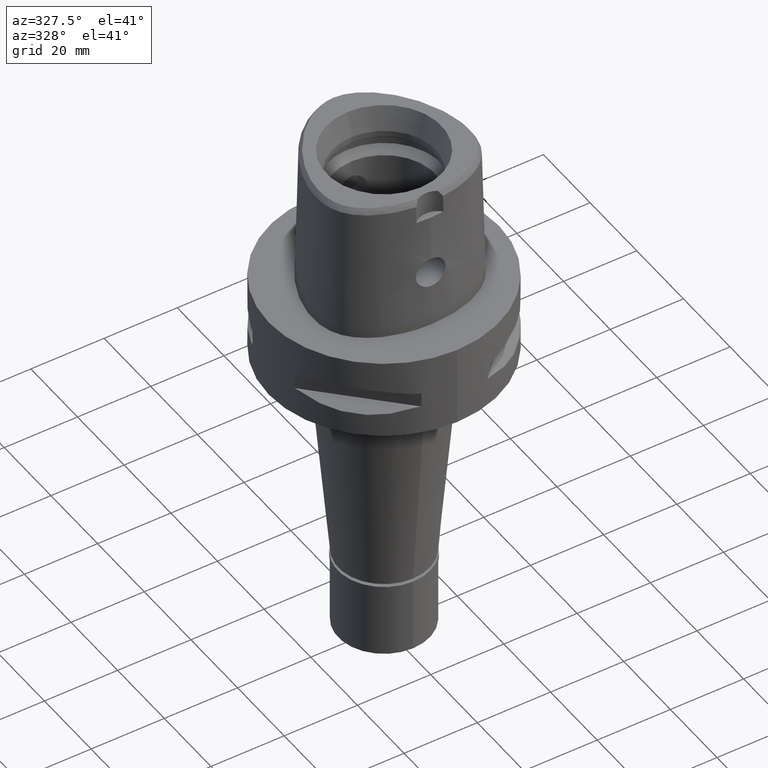
[diagram: clean part render]
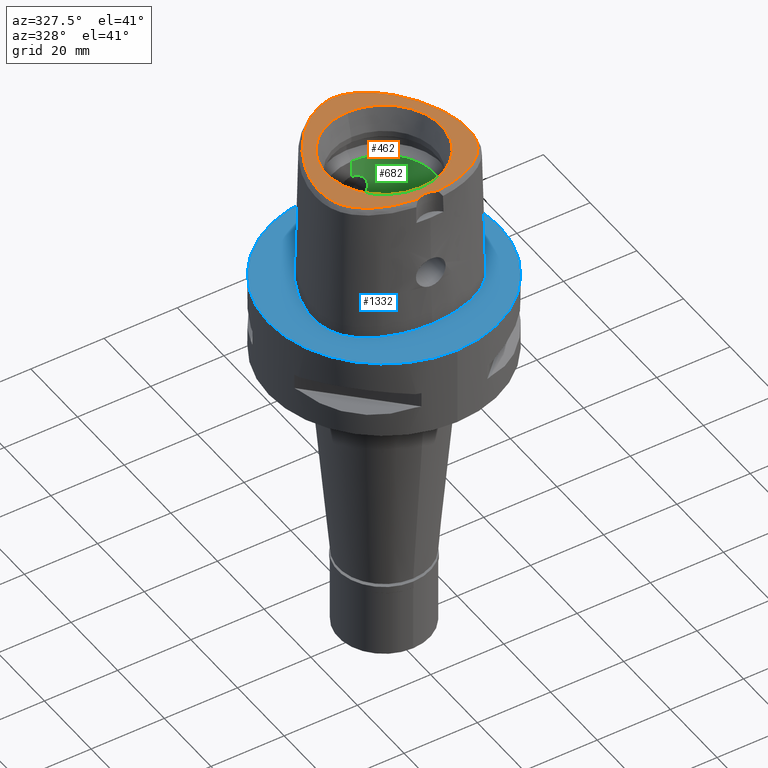
[diagram: same view with three faces highlighted in distinct colors, each labeled with its STEP entity id]
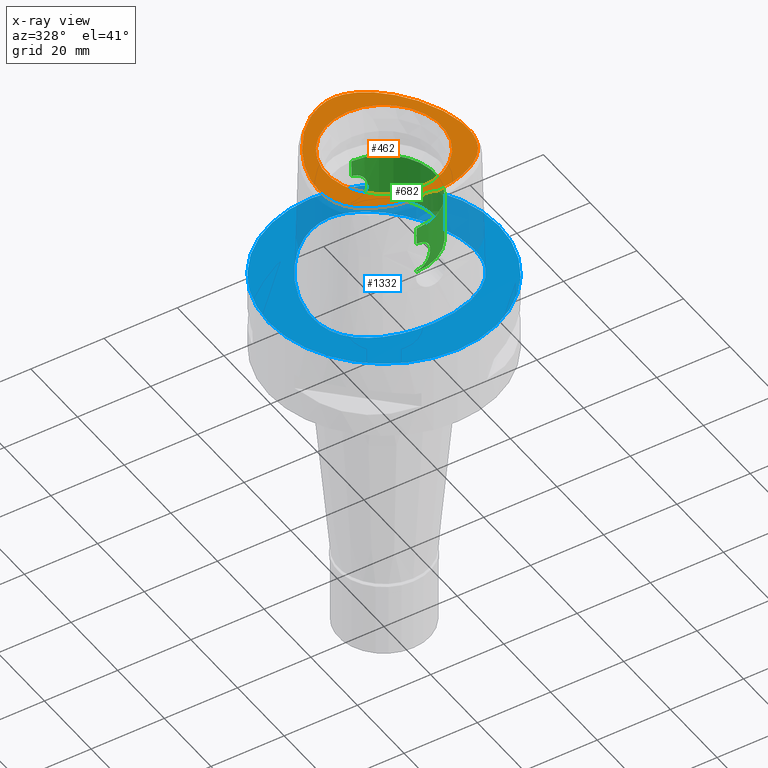
[diagram: x-ray of the same camera — body ghosted, the three highlighted faces saturated]
A machine part, auxiliary view with three faces highlighted in distinct colors.
The next image is the same camera in x-ray (body ghosted, the three faces saturated) — at least one of them is partly hidden behind the body in this view.
Their STEP definitions:

[orange] entity #462 — the highlighted planar face has unit normal (0, 0, 1).
#46 = CARTESIAN_POINT ( 'NONE',  ( -19.78262210840552981, -8.543146992551962526, 38.00000000000281375 ) ) ;
#132 = DIRECTION ( 'NONE',  ( 0.0000000000000000000, 1.000000000000000000, 0.0000000000000000000 ) ) ;
#147 = AXIS2_PLACEMENT_3D ( 'NONE', #3137, #1197, #2326 ) ;
#174 = CARTESIAN_POINT ( 'NONE',  ( -0.6498990081533727592, 21.67378274707922259, 37.99999999999635492 ) ) ;
#180 = EDGE_CURVE ( 'NONE', #1405, #1627, #1930, .T. ) ;
#253 = CARTESIAN_POINT ( 'NONE',  ( 19.26272899268332495, 2.870227893749907278, 37.99999999999666045 ) ) ;
#275 = CARTESIAN_POINT ( 'NONE',  ( 19.98468477322884951, -7.807876343103253625, 37.99999999999519673 ) ) ;
#304 = AXIS2_PLACEMENT_3D ( 'NONE', #1051, #4631, #2601 ) ;
#329 = CARTESIAN_POINT ( 'NONE',  ( -19.54919922641557051, -9.228169790567918085, 38.00000000000756728 ) ) ;
#345 = CARTESIAN_POINT ( 'NONE',  ( 0.0000000000000000000, 15.71487483155999776, 38.00000000000000000 ) ) ;
#350 = CARTESIAN_POINT ( 'NONE',  ( -18.31748213707032846, -11.58791794387644636, 37.99999999999504041 ) ) ;
#378 = CARTESIAN_POINT ( 'NONE',  ( -15.00295592773540143, -14.82617991125659529, 37.99999999999928235 ) ) ;
#427 = CARTESIAN_POINT ( 'NONE',  ( -3.522896839654338308, -18.70811514173411538, 37.99999999999774047 ) ) ;
#462 = ADVANCED_FACE ( 'NONE', ( #4943, #1130 ), #1105, .T. ) ;
#471 = ORIENTED_EDGE ( 'NONE', *, *, #2487, .F. ) ;
#496 = EDGE_LOOP ( 'NONE', ( #2342, #471, #1684 ) ) ;
#504 = CARTESIAN_POINT ( 'NONE',  ( -1.323674540694193213, 21.61098849315887449, 38.00000000000073896 ) ) ;
#588 = CARTESIAN_POINT ( 'NONE',  ( -2.682279906006999948, -18.78035848609999903, 38.00000000000000000 ) ) ;
#609 = CARTESIAN_POINT ( 'NONE',  ( 0.2185816947241264185, 21.68728795389688813, 38.00000000000073186 ) ) ;
#663 = CARTESIAN_POINT ( 'NONE',  ( 20.15982952132096173, -1.007721426051856994, 38.00000000000159162 ) ) ;
#688 = CARTESIAN_POINT ( 'NONE',  ( 20.38292172607745201, -3.276278498261031569, 37.99999999999698730 ) ) ;
#714 = CARTESIAN_POINT ( 'NONE',  ( 10.48999540691348287, 16.86597469869753496, 37.99999999999941735 ) ) ;
#767 = CARTESIAN_POINT ( 'NONE',  ( -14.21001600787493935, -15.34519100085890031, 38.00000000000296296 ) ) ;
#796 = CARTESIAN_POINT ( 'NONE',  ( -19.28591707037048053, -9.869682450886278602, 38.00000000000115818 ) ) ;
#820 = CARTESIAN_POINT ( 'NONE',  ( -4.706994425064091381, -18.56721852572143661, 38.00000000001156053 ) ) ;
#865 = CARTESIAN_POINT ( 'NONE',  ( -4.254559144977106300, 20.86660163696978643, 38.00000000000041922 ) ) ;
#996 = CARTESIAN_POINT ( 'NONE',  ( 16.36283630828387459, -13.76236604535341890, 37.99999999999447908 ) ) ;
#1018 = CARTESIAN_POINT ( 'NONE',  ( 5.894487344450284105, 20.13186406532522454, 37.99999999999013767 ) ) ;
#1045 = CARTESIAN_POINT ( 'NONE',  ( 11.46587147800505235, 15.92717600803452882, 37.99999999999688072 ) ) ;
#1051 = CARTESIAN_POINT ( 'NONE',  ( 0.0000000000000000000, 0.0000000000000000000, 38.00000000000000000 ) ) ;
#1075 = CARTESIAN_POINT ( 'NONE',  ( 12.44125753246675359, 14.89118158853383989, 37.99999999999811706 ) ) ;
#1100 = CARTESIAN_POINT ( 'NONE',  ( 17.91165267839327768, -12.13575389397936100, 38.00000000000002132 ) ) ;
#1105 = PLANE ( 'NONE',  #304 ) ;
#1130 = FACE_BOUND ( 'NONE', #4681, .T. ) ;
#1131 = CARTESIAN_POINT ( 'NONE',  ( -8.930096025509984159, -17.65000298921531297, 38.00000000000046185 ) ) ;
#1134 = CARTESIAN_POINT ( 'NONE',  ( 2.682287482605000051, -18.78036330228999873, 38.00000000000000000 ) ) ;
#1159 = CARTESIAN_POINT ( 'NONE',  ( -18.99520880204162765, -10.46968343926018186, 38.00000000000366640 ) ) ;
#1179 = CARTESIAN_POINT ( 'NONE',  ( -20.16012968311603260, -1.009698174524550129, 38.00000000000493827 ) ) ;
#1197 = DIRECTION ( 'NONE',  ( 0.0000000000000000000, 0.0000000000000000000, 1.000000000000000000 ) ) ;
#1204 = CARTESIAN_POINT ( 'NONE',  ( -20.15090095364973166, -7.024227649787400551, 38.00000000000152056 ) ) ;
#1229 = CARTESIAN_POINT ( 'NONE',  ( -17.45119705493798179, -12.68365517585207769, 38.00000000000652989 ) ) ;
#1306 = CARTESIAN_POINT ( 'NONE',  ( -5.893543501600515100, 20.13235399351791699, 38.00000000000964917 ) ) ;
#1328 = CARTESIAN_POINT ( 'NONE',  ( -5.058220461388441613, 20.53445508814107257, 38.00000000000193268 ) ) ;
#1378 = CARTESIAN_POINT ( 'NONE',  ( 10.17751632998204236, -17.24426134458966686, 37.99999999999598543 ) ) ;
#1401 = CARTESIAN_POINT ( 'NONE',  ( 19.78323211893065192, -8.541156231035676782, 37.99999999999571543 ) ) ;
#1405 = VERTEX_POINT ( 'NONE', #1134 ) ;
#1429 = CARTESIAN_POINT ( 'NONE',  ( 15.72078707640399386, -14.29615620309059310, 37.99999999999869971 ) ) ;
#1458 = CARTESIAN_POINT ( 'NONE',  ( 13.40430406168277067, 13.76274261013427136, 37.99999999999808153 ) ) ;
#1486 = CARTESIAN_POINT ( 'NONE',  ( 1.325020189552918115, 21.61081414408923962, 37.99999999999540989 ) ) ;
#1513 = CARTESIAN_POINT ( 'NONE',  ( -19.64434054692667431, 1.520253387635122300, 37.99999999999868550 ) ) ;
#1526 = B_SPLINE_CURVE_WITH_KNOTS ( 'NONE', 3,
 ( #3473, #1937, #427, #820, #2703, #3527, #1131, #1607, #3888, #4292, #5017, #767, #378, #4684, #2316, #2372, #1229, #3842, #350, #4343, #1159, #796, #329, #46, #3504, #1204, #1560, #2729, #4740, #3117, #1888, #1179, #3940, #1513, #1582, #3143, #1989, #3167, #3549, #2779, #2269, #3062, #4633, #2678, #4249, #2826, #2447, #1707, #4814, #4368, #1306, #1328, #865, #4787, #4860, #4013, #504, #174, #2855, #2113 ),
 .UNSPECIFIED., .F., .F.,
 ( 4, 1, 1, 1, 1, 1, 1, 1, 1, 1, 1, 1, 1, 1, 1, 1, 1, 1, 1, 1, 1, 1, 1, 1, 1, 1, 1, 1, 1, 1, 1, 1, 1, 1, 1, 1, 1, 1, 1, 1, 1, 1, 1, 1, 1, 1, 1, 1, 1, 1, 1, 1, 1, 1, 1, 1, 1, 4 ),
 ( 0.0000000000000000000, 0.005420919554200098744, 0.02318126027639999531, 0.04094160099879995407, 0.05870194172099996166, 0.07646228244330000035, 0.09422262316550000794, 0.1119829638877999356, 0.1297433046099999432, 0.1475036453321999508, 0.1652639860544999895, 0.1830243267768000281, 0.2007846674991000668, 0.2185450082212999634, 0.2363053489436000021, 0.2540656896658000097, 0.2718260303881000484, 0.2895863711103000560, 0.3073467118325999836, 0.3251070525547999912, 0.3428673932771000299, 0.3606277339994000686, 0.3783880747216000762, 0.3961484154438998928, 0.4139087561661000114, 0.4316690968884000501, 0.4494294376106000577, 0.4671897783328999854, 0.4849501190552000240, 0.5027104597774000316, 0.5204708004996999593, 0.5382311412219000779, 0.5559914819442000056, 0.5737518226664000132, 0.5915121633886999408, 0.6092725041108999484, 0.6270328448331999871, 0.6447931855555000258, 0.6625535262777000334, 0.6803138669999999610, 0.6980742077221999686, 0.7158345484445000073, 0.7335948891667000149, 0.7513552298890000536, 0.7691155706112000612, 0.7868759113336000199, 0.8046362520558000275, 0.8223965927780999552, 0.8401569335002999628, 0.8579172742224999704, 0.8756776149448000091, 0.8934379556670000166, 0.9111982963893099363, 0.9289586371115700070, 0.9467189778338299666, 0.9644793185560800453, 0.9822396592783400049, 1.000000000000000000 ),
 .UNSPECIFIED. ) ;
#1560 = CARTESIAN_POINT ( 'NONE',  ( -20.27898581532319966, -6.181921586189865536, 37.99999999999933920 ) ) ;
#1582 = CARTESIAN_POINT ( 'NONE',  ( -19.26324493738749055, 2.868570891456666327, 38.00000000000490274 ) ) ;
#1607 = CARTESIAN_POINT ( 'NONE',  ( -10.17136073855609624, -17.24644253469755384, 38.00000000000308376 ) ) ;
#1627 = VERTEX_POINT ( 'NONE', #588 ) ;
#1667 = DIRECTION ( 'NONE',  ( 0.0000000000000000000, 0.0000000000000000000, 1.000000000000000000 ) ) ;
#1684 = ORIENTED_EDGE ( 'NONE', *, *, #180, .F. ) ;
#1707 = CARTESIAN_POINT ( 'NONE',  ( -8.578220530112627529, 18.44656747109207728, 38.00000000000359535 ) ) ;
#1752 = CARTESIAN_POINT ( 'NONE',  ( 8.578848111817377387, 18.44609846599081138, 37.99999999999710809 ) ) ;
#1779 = CARTESIAN_POINT ( 'NONE',  ( 8.936919536467087255, -17.64796721715518402, 37.99999999999105427 ) ) ;
#1806 = CARTESIAN_POINT ( 'NONE',  ( 15.24661770199737632, 11.25762885478421538, 37.99999999999798206 ) ) ;
#1809 = VERTEX_POINT ( 'NONE', #345 ) ;
#1832 = CARTESIAN_POINT ( 'NONE',  ( 18.67722910597911223, -11.03372143227727342, 37.99999999999814548 ) ) ;
#1834 = DIRECTION ( 'NONE',  ( 0.0000000000000000000, -1.000000000000000000, 0.0000000000000000000 ) ) ;
#1859 = CARTESIAN_POINT ( 'NONE',  ( 19.28677546797063513, -9.867757137506577791, 37.99999999999479883 ) ) ;
#1888 = CARTESIAN_POINT ( 'NONE',  ( -20.30498420086360056, -2.177378896258066021, 38.00000000000732570 ) ) ;
#1930 = CIRCLE ( 'NONE', #3074, 5.000000000000000888 ) ;
#1937 = CARTESIAN_POINT ( 'NONE',  ( -2.841965291530468285, -18.76757795571840504, 37.99999999999843681 ) ) ;
#1956 = B_SPLINE_CURVE_WITH_KNOTS ( 'NONE', 3,
 ( #3837, #609, #3781, #1486, #3753, #3011, #4579, #3345, #4549, #1018, #2953, #2568, #1752, #3807, #714, #1045, #1075, #1458, #4193, #1806, #3034, #4602, #4494, #2596, #4137, #253, #4518, #4170, #663, #2619, #688, #3369, #2262, #4217, #2214, #275, #1401, #3318, #1859, #2238, #1832, #2159, #1100, #4937, #3394, #996, #1429, #2981, #4968, #3424, #4995, #4885, #1378, #1779, #2931, #4911, #2645, #3724, #2543, #4110 ),
 .UNSPECIFIED., .F., .F.,
 ( 4, 1, 1, 1, 1, 1, 1, 1, 1, 1, 1, 1, 1, 1, 1, 1, 1, 1, 1, 1, 1, 1, 1, 1, 1, 1, 1, 1, 1, 1, 1, 1, 1, 1, 1, 1, 1, 1, 1, 1, 1, 1, 1, 1, 1, 1, 1, 1, 1, 1, 1, 1, 1, 1, 1, 1, 1, 4 ),
 ( 0.0000000000000000000, 0.01775854187129999318, 0.03551708374169992855, 0.05327562561200005486, 0.07103416748239999023, 0.08879270935270000553, 0.1065512512231000519, 0.1243097930933999562, 0.1420683349638000026, 0.1598268768341000179, 0.1775854187044000332, 0.1953439605747999686, 0.2131025024450999839, 0.2308610443155000302, 0.2486195861857999345, 0.2663781280563000120, 0.2841366699266000273, 0.3018952117970000737, 0.3196537536672999780, 0.3374122955377000244, 0.3551708374080000397, 0.3729293792782999439, 0.3906879211486999903, 0.4084464630190000056, 0.4262050048894000520, 0.4439635467596999563, 0.4617220886301000027, 0.4794806305004000180, 0.4972391723707999533, 0.5149977142410999686, 0.5327562561113999839, 0.5505147979818000303, 0.5682733398521000456, 0.5860318817224999810, 0.6037904235927999963, 0.6215489654632000427, 0.6393075073334999470, 0.6570660492038999934, 0.6748245910742000087, 0.6925831329445000240, 0.7103416748149000703, 0.7281002166851999746, 0.7458587585556000210, 0.7636173004259000363, 0.7813758422962999717, 0.7991343841665999870, 0.8168929260370000334, 0.8346514679073000487, 0.8524100097776999840, 0.8701685516479999993, 0.8879270935183000146, 0.9056856353886799660, 0.9234441772589799813, 0.9412027191293600437, 0.9589612609997000270, 0.9767198028700500023, 0.9944783447403919840, 1.000000000000000000 ),
 .UNSPECIFIED. ) ;
#1988 = EDGE_CURVE ( 'NONE', #1809, #2608, #2350, .T. ) ;
#1989 = CARTESIAN_POINT ( 'NONE',  ( -18.24302769442031291, 5.671232572957693563, 38.00000000000365930 ) ) ;
#2113 = CARTESIAN_POINT ( 'NONE',  ( -3.470663397229000302E-11, 21.68728795390000030, 38.00000000000000000 ) ) ;
#2159 = CARTESIAN_POINT ( 'NONE',  ( 18.31883910943081517, -11.58595831187914804, 37.99999999999335643 ) ) ;
#2214 = CARTESIAN_POINT ( 'NONE',  ( 20.15127154947508359, -7.022178451341208216, 37.99999999999802469 ) ) ;
#2238 = CARTESIAN_POINT ( 'NONE',  ( 18.99619228226755396, -10.46780014453288743, 37.99999999999511857 ) ) ;
#2262 = CARTESIAN_POINT ( 'NONE',  ( 20.36412151360649858, -5.276385427453883281, 37.99999999999705835 ) ) ;
#2269 = CARTESIAN_POINT ( 'NONE',  ( -15.24692477332314233, 11.25717358965731485, 38.00000000000438405 ) ) ;
#2316 = CARTESIAN_POINT ( 'NONE',  ( -16.36032397153557838, -13.76458520345077119, 38.00000000000245848 ) ) ;
#2326 = DIRECTION ( 'NONE',  ( 0.0000000000000000000, 1.000000000000000000, 0.0000000000000000000 ) ) ;
#2342 = ORIENTED_EDGE ( 'NONE', *, *, #4027, .F. ) ;
#2350 = CIRCLE ( 'NONE', #147, 15.71487483155999776 ) ;
#2372 = CARTESIAN_POINT ( 'NONE',  ( -16.93638123744996449, -13.22593246128253419, 37.99999999999452882 ) ) ;
#2447 = CARTESIAN_POINT ( 'NONE',  ( -9.524337278000626128, 17.70558492631665004, 38.00000000000424905 ) ) ;
#2487 = EDGE_CURVE ( 'NONE', #1627, #4923, #1526, .T. ) ;
#2543 = CARTESIAN_POINT ( 'NONE',  ( 2.845098933833402732, -18.76733062685941533, 37.99999999999683808 ) ) ;
#2568 = CARTESIAN_POINT ( 'NONE',  ( 7.655962789343603525, 19.09402979099492015, 37.99999999999594991 ) ) ;
#2596 = CARTESIAN_POINT ( 'NONE',  ( 18.24247239569132972, 5.672548708072024937, 37.99999999999890576 ) ) ;
#2597 = CARTESIAN_POINT ( 'NONE',  ( -3.470663397229000302E-11, 21.68728795390000030, 38.00000000000000000 ) ) ;
#2601 = DIRECTION ( 'NONE',  ( 1.000000000000000000, 0.0000000000000000000, 0.0000000000000000000 ) ) ;
#2608 = VERTEX_POINT ( 'NONE', #4701 ) ;
#2619 = CARTESIAN_POINT ( 'NONE',  ( 20.30478359882114248, -2.175347700950460261, 37.99999999999803890 ) ) ;
#2645 = CARTESIAN_POINT ( 'NONE',  ( 4.715576077242102038, -18.56597918135167902, 37.99999999998752287 ) ) ;
#2673 = ORIENTED_EDGE ( 'NONE', *, *, #4926, .F. ) ;
#2678 = CARTESIAN_POINT ( 'NONE',  ( -12.44116897271252498, 14.89128547409181280, 38.00000000000535039 ) ) ;
#2703 = CARTESIAN_POINT ( 'NONE',  ( -6.188376196366496274, -18.31830638231022590, 38.00000000000454747 ) ) ;
#2729 = CARTESIAN_POINT ( 'NONE',  ( -20.36398648679262280, -5.278470727085379899, 37.99999999999829470 ) ) ;
#2779 = CARTESIAN_POINT ( 'NONE',  ( -16.09805956313175912, 9.908742513516047623, 38.00000000000571987 ) ) ;
#2826 = CARTESIAN_POINT ( 'NONE',  ( -10.48962422759530533, 16.86631853279389759, 38.00000000000986944 ) ) ;
#2855 = CARTESIAN_POINT ( 'NONE',  ( -0.2181979014508255710, 21.68728795389070996, 37.99999999999972999 ) ) ;
#2931 = CARTESIAN_POINT ( 'NONE',  ( 7.606839420237573535, -18.00827588386176004, 37.99999999999720046 ) ) ;
#2953 = CARTESIAN_POINT ( 'NONE',  ( 6.760281394351507878, 19.65404668910018771, 37.99999999999480593 ) ) ;
#2981 = CARTESIAN_POINT ( 'NONE',  ( 15.00628712263345221, -14.82385870794839988, 37.99999999999199929 ) ) ;
#3011 = CARTESIAN_POINT ( 'NONE',  ( 2.736932690727418294, 21.34527940056959139, 37.99999999999574385 ) ) ;
#3034 = CARTESIAN_POINT ( 'NONE',  ( 16.09765529146816831, 9.909410920132508238, 37.99999999999626965 ) ) ;
#3062 = CARTESIAN_POINT ( 'NONE',  ( -14.34402387965822001, 12.54761970512852187, 38.00000000000321165 ) ) ;
#3074 = AXIS2_PLACEMENT_3D ( 'NONE', #4772, #1667, #132 ) ;
#3117 = CARTESIAN_POINT ( 'NONE',  ( -20.38301517462559076, -3.278344853327928909, 38.00000000000537170 ) ) ;
#3137 = CARTESIAN_POINT ( 'NONE',  ( 0.0000000000000000000, 0.0000000000000000000, 38.00000000000000000 ) ) ;
#3143 = CARTESIAN_POINT ( 'NONE',  ( -18.79649882724998022, 4.256255933890688681, 37.99999999999986500 ) ) ;
#3167 = CARTESIAN_POINT ( 'NONE',  ( -17.60426951086602543, 7.098774535280977460, 37.99999999999985789 ) ) ;
#3318 = CARTESIAN_POINT ( 'NONE',  ( 19.54993126782149204, -9.226212439886005257, 37.99999999999601386 ) ) ;
#3345 = CARTESIAN_POINT ( 'NONE',  ( 4.255661039972457260, 20.86618068830161477, 37.99999999999078426 ) ) ;
#3369 = CARTESIAN_POINT ( 'NONE',  ( 20.40062138794564817, -4.309334958867639287, 38.00000000000136424 ) ) ;
#3394 = CARTESIAN_POINT ( 'NONE',  ( 16.93855157778130760, -13.22377441788924024, 37.99999999999106137 ) ) ;
#3424 = CARTESIAN_POINT ( 'NONE',  ( 13.33890749495513006, -15.84912955619422981, 37.99999999999434408 ) ) ;
#3473 = CARTESIAN_POINT ( 'NONE',  ( -2.682279906006999948, -18.78035848609999903, 38.00000000000000000 ) ) ;
#3502 = CIRCLE ( 'NONE', #4158, 15.71487483155999776 ) ;
#3504 = CARTESIAN_POINT ( 'NONE',  ( -19.98419490691661338, -7.809898894995214391, 38.00000000000164846 ) ) ;
#3527 = CARTESIAN_POINT ( 'NONE',  ( -7.599370508970309857, -18.01010694911651910, 38.00000000000925837 ) ) ;
#3549 = CARTESIAN_POINT ( 'NONE',  ( -16.88647904405405598, 8.517821442301785950, 38.00000000000395772 ) ) ;
#3724 = CARTESIAN_POINT ( 'NONE',  ( 3.529311563348512593, -18.70747079910031019, 37.99999999999567990 ) ) ;
#3725 = DIRECTION ( 'NONE',  ( 0.0000000000000000000, 0.0000000000000000000, 1.000000000000000000 ) ) ;
#3753 = CARTESIAN_POINT ( 'NONE',  ( 2.018320379028101463, 21.50256508436266856, 37.99999999999842260 ) ) ;
#3781 = CARTESIAN_POINT ( 'NONE',  ( 0.6513209347955878359, 21.67370899611608337, 38.00000000000238032 ) ) ;
#3807 = CARTESIAN_POINT ( 'NONE',  ( 9.524842839488691482, 17.70516372195016430, 37.99999999999702993 ) ) ;
#3837 = CARTESIAN_POINT ( 'NONE',  ( -3.470663397229000302E-11, 21.68728795390000030, 38.00000000000000000 ) ) ;
#3842 = CARTESIAN_POINT ( 'NONE',  ( -17.91005512243933495, -12.13778127739592350, 38.00000000000576250 ) ) ;
#3888 = CARTESIAN_POINT ( 'NONE',  ( -11.31790883121222002, -16.80796958613126790, 38.00000000000212452 ) ) ;
#3940 = CARTESIAN_POINT ( 'NONE',  ( -19.94188961899090273, 0.2242544969873270511, 38.00000000000666489 ) ) ;
#4013 = CARTESIAN_POINT ( 'NONE',  ( -2.017025177696609717, 21.50280829368043811, 37.99999999999572964 ) ) ;
#4027 = EDGE_CURVE ( 'NONE', #4923, #1405, #1956, .T. ) ;
#4090 = CARTESIAN_POINT ( 'NONE',  ( 0.0000000000000000000, 0.0000000000000000000, 38.00000000000000000 ) ) ;
#4110 = CARTESIAN_POINT ( 'NONE',  ( 2.682287482605000051, -18.78036330228999873, 38.00000000000000000 ) ) ;
#4137 = CARTESIAN_POINT ( 'NONE',  ( 18.79595068775972777, 4.257753965102246241, 38.00000000000069633 ) ) ;
#4158 = AXIS2_PLACEMENT_3D ( 'NONE', #4090, #3725, #1834 ) ;
#4170 = CARTESIAN_POINT ( 'NONE',  ( 19.94150023628145618, 0.2261566111946073931, 37.99999999999950262 ) ) ;
#4193 = CARTESIAN_POINT ( 'NONE',  ( 14.34383722811384843, 12.54786717290293474, 37.99999999999545253 ) ) ;
#4217 = CARTESIAN_POINT ( 'NONE',  ( 20.27923816685535385, -6.179850483267900429, 38.00000000000305533 ) ) ;
#4249 = CARTESIAN_POINT ( 'NONE',  ( -11.46564124494734926, 15.92741340513242143, 37.99999999999715072 ) ) ;
#4292 = CARTESIAN_POINT ( 'NONE',  ( -12.37132652997737914, -16.34104299087987400, 37.99999999999735678 ) ) ;
#4343 = CARTESIAN_POINT ( 'NONE',  ( -18.67608643721240114, -11.03561202290660859, 38.00000000000439115 ) ) ;
#4368 = CARTESIAN_POINT ( 'NONE',  ( -6.759433772716266553, 19.65454812513081961, 37.99999999999882050 ) ) ;
#4447 = ORIENTED_EDGE ( 'NONE', *, *, #1988, .F. ) ;
#4494 = CARTESIAN_POINT ( 'NONE',  ( 17.60373714028314751, 7.099883643193211746, 37.99999999999481304 ) ) ;
#4518 = CARTESIAN_POINT ( 'NONE',  ( 19.64387775268522418, 1.522048414457770837, 37.99999999999263167 ) ) ;
#4549 = CARTESIAN_POINT ( 'NONE',  ( 5.059249257021276591, 20.53399274679161479, 37.99999999999691624 ) ) ;
#4579 = CARTESIAN_POINT ( 'NONE',  ( 3.482188079160266625, 21.13472718027447073, 37.99999999999266720 ) ) ;
#4602 = CARTESIAN_POINT ( 'NONE',  ( 16.88599964843147205, 8.518708218770175478, 37.99999999999621991 ) ) ;
#4631 = DIRECTION ( 'NONE',  ( 0.0000000000000000000, 0.0000000000000000000, 1.000000000000000000 ) ) ;
#4633 = CARTESIAN_POINT ( 'NONE',  ( -13.40435640711669052, 13.76268382997176865, 37.99999999999967315 ) ) ;
#4681 = EDGE_LOOP ( 'NONE', ( #2673, #4447 ) ) ;
#4684 = CARTESIAN_POINT ( 'NONE',  ( -15.71788912669418181, -14.29843101565814401, 37.99999999999955946 ) ) ;
#4701 = CARTESIAN_POINT ( 'NONE',  ( 0.0000000000000000000, -15.71487483155999776, 38.00000000000000000 ) ) ;
#4740 = CARTESIAN_POINT ( 'NONE',  ( -20.40060226222959727, -4.311417605381600460, 38.00000000000920863 ) ) ;
#4772 = CARTESIAN_POINT ( 'NONE',  ( 0.0000000000000000000, -23.00000000000000000, 38.00000000000000000 ) ) ;
#4787 = CARTESIAN_POINT ( 'NONE',  ( -3.481017203588342657, 21.13509756881651214, 38.00000000000250111 ) ) ;
#4814 = CARTESIAN_POINT ( 'NONE',  ( -7.655222869371202776, 19.09452359226191120, 37.99999999999905498 ) ) ;
#4860 = CARTESIAN_POINT ( 'NONE',  ( -2.735698246182536320, 21.34559102902381866, 38.00000000000737543 ) ) ;
#4885 = CARTESIAN_POINT ( 'NONE',  ( 11.32341394162545711, -16.80569392800240180, 37.99999999999452882 ) ) ;
#4911 = CARTESIAN_POINT ( 'NONE',  ( 6.196495988003987598, -18.31673538865303996, 37.99999999999493383 ) ) ;
#4923 = VERTEX_POINT ( 'NONE', #2597 ) ;
#4926 = EDGE_CURVE ( 'NONE', #2608, #1809, #3502, .T. ) ;
#4937 = CARTESIAN_POINT ( 'NONE',  ( 17.45306278053514148, -12.68156296993879373, 37.99999999999755573 ) ) ;
#4943 = FACE_OUTER_BOUND ( 'NONE', #496, .T. ) ;
#4968 = CARTESIAN_POINT ( 'NONE',  ( 14.21382211799205564, -15.34284287400554270, 37.99999999999376143 ) ) ;
#4995 = CARTESIAN_POINT ( 'NONE',  ( 12.37622418509544531, -16.33871033286036933, 37.99999999999196376 ) ) ;
#5017 = CARTESIAN_POINT ( 'NONE',  ( -13.33457781969781486, -15.85148397417110111, 38.00000000000518696 ) ) ;

[blue] entity #1332 — the highlighted planar face has unit normal (0, 0, -1).
#19 = CARTESIAN_POINT ( 'NONE',  ( -5.098437017460036635, 22.52602539107009605, -1.896419848414210296E-08 ) ) ;
#24 = CARTESIAN_POINT ( 'NONE',  ( 7.571159421460366801, 21.31457029046941898, 1.017786698643370277E-06 ) ) ;
#256 = EDGE_LOOP ( 'NONE', ( #2533, #952 ) ) ;
#281 = CARTESIAN_POINT ( 'NONE',  ( 18.56841063287715343, -14.16937986524684767, 1.017786698643370277E-06 ) ) ;
#307 = CARTESIAN_POINT ( 'NONE',  ( 21.55524823561971814, -8.996025383350751525, 1.017786698643370277E-06 ) ) ;
#374 = VERTEX_POINT ( 'NONE', #3373 ) ;
#381 = DIRECTION ( 'NONE',  ( 0.0000000000000000000, -1.000000000000000000, 0.0000000000000000000 ) ) ;
#453 = DIRECTION ( 'NONE',  ( 0.0000000000000000000, 1.000000000000000000, 0.0000000000000000000 ) ) ;
#690 = CARTESIAN_POINT ( 'NONE',  ( -14.67337964443364484, -17.21410156291689475, -1.896419848414210296E-08 ) ) ;
#729 = AXIS2_PLACEMENT_3D ( 'NONE', #1253, #2395, #453 ) ;
#747 = DIRECTION ( 'NONE',  ( 0.0000000000000000000, 0.0000000000000000000, -1.000000000000000000 ) ) ;
#762 = CARTESIAN_POINT ( 'NONE',  ( -2.564517727054335783, 23.29328125046647457, -1.896419848414210296E-08 ) ) ;
#952 = ORIENTED_EDGE ( 'NONE', *, *, #1267, .F. ) ;
#1102 = CARTESIAN_POINT ( 'NONE',  ( -16.95889172623143182, -15.67838867225140120, -1.896419848414210296E-08 ) ) ;
#1207 = FACE_BOUND ( 'NONE', #4007, .T. ) ;
#1253 = CARTESIAN_POINT ( 'NONE',  ( 0.0000000000000000000, 0.0000000000000000000, 0.0000000000000000000 ) ) ;
#1267 = EDGE_CURVE ( 'NONE', #3220, #4011, #4727, .T. ) ;
#1279 = CARTESIAN_POINT ( 'NONE',  ( 0.0000000000000000000, 31.50000000000000000, 0.0000000000000000000 ) ) ;
#1332 = ADVANCED_FACE ( 'NONE', ( #2320, #1207 ), #2761, .F. ) ;
#1826 = B_SPLINE_CURVE_WITH_KNOTS ( 'NONE', 3,
 ( #4974, #4917, #4527, #2573, #4145, #3786, #281, #1839, #3017, #3816, #307, #1865, #3038, #2649, #4223, #4661, #2346, #3917, #24, #1966, #2292, #2758, #4318 ),
 .UNSPECIFIED., .F., .F.,
 ( 4, 1, 1, 1, 1, 1, 1, 1, 1, 1, 1, 1, 1, 1, 1, 1, 1, 1, 1, 1, 4 ),
 ( 0.0000000000000000000, 0.08333333333342000937, 0.1666666666667000196, 0.2083333333333000081, 0.2500000000000000000, 0.2916666666666999919, 0.3125000000000000000, 0.3333333333333000081, 0.3541666666666999919, 0.3750000000000000000, 0.4166666666666000163, 0.4583333333332000326, 0.4999999999998999689, 0.5833333333332000326, 0.6666666666664999852, 0.7499999999998000488, 0.8333333333329999704, 0.8749999999997000177, 0.9166666666664000651, 0.9583333333329999704, 1.000000000000000000 ),
 .UNSPECIFIED. ) ;
#1833 = EDGE_CURVE ( 'NONE', #4746, #374, #2676, .T. ) ;
#1839 = CARTESIAN_POINT ( 'NONE',  ( 19.64947363801921298, -12.82525389127146376, 1.017786698643370277E-06 ) ) ;
#1865 = CARTESIAN_POINT ( 'NONE',  ( 22.05732871792944394, -6.847636715114644446, 1.017786698643370277E-06 ) ) ;
#1905 = CARTESIAN_POINT ( 'NONE',  ( -21.55524826054831422, -8.996025390761106522, -1.896419848414210296E-08 ) ) ;
#1944 = CIRCLE ( 'NONE', #729, 31.50000000000000000 ) ;
#1960 = CARTESIAN_POINT ( 'NONE',  ( -2.113823673092746880, -20.67500000047041908, -1.896419848414210296E-08 ) ) ;
#1966 = CARTESIAN_POINT ( 'NONE',  ( 5.098437007786655428, 22.52602536689999368, 1.017786698643370277E-06 ) ) ;
#2005 = ORIENTED_EDGE ( 'NONE', *, *, #1833, .F. ) ;
#2128 = CARTESIAN_POINT ( 'NONE',  ( 0.0000000000000000000, -31.50000000000000000, 0.0000000000000000000 ) ) ;
#2287 = CARTESIAN_POINT ( 'NONE',  ( -20.74942740924353757, 4.657187500162169869, -1.896419848414210296E-08 ) ) ;
#2292 = CARTESIAN_POINT ( 'NONE',  ( 2.564517721726504274, 23.29328122494289488, 1.017786698643370277E-06 ) ) ;
#2310 = CARTESIAN_POINT ( 'NONE',  ( -22.05732874369456198, -6.847636718817597945, -1.896419848414210296E-08 ) ) ;
#2320 = FACE_OUTER_BOUND ( 'NONE', #256, .T. ) ;
#2340 = CARTESIAN_POINT ( 'NONE',  ( -18.56841065176654126, -14.16937988313790520, -1.896419848414210296E-08 ) ) ;
#2346 = CARTESIAN_POINT ( 'NONE',  ( 14.40795637003050089, 15.64093748349210777, 1.017786698643370277E-06 ) ) ;
#2395 = DIRECTION ( 'NONE',  ( 0.0000000000000000000, 0.0000000000000000000, -1.000000000000000000 ) ) ;
#2427 = EDGE_CURVE ( 'NONE', #374, #4746, #1826, .T. ) ;
#2533 = ORIENTED_EDGE ( 'NONE', *, *, #2565, .F. ) ;
#2565 = EDGE_CURVE ( 'NONE', #4011, #3220, #1944, .T. ) ;
#2573 = CARTESIAN_POINT ( 'NONE',  ( 11.23259755853898767, -18.89324216345025320, 1.017786698643370277E-06 ) ) ;
#2583 = AXIS2_PLACEMENT_3D ( 'NONE', #4322, #3891, #381 ) ;
#2621 = CARTESIAN_POINT ( 'NONE',  ( -19.64947365902704490, -12.82525390652630826, -1.896419848414210296E-08 ) ) ;
#2646 = CARTESIAN_POINT ( 'NONE',  ( -9.636109285332001838E-12, -20.67499999999999716, 6.368979417932999865E-14 ) ) ;
#2649 = CARTESIAN_POINT ( 'NONE',  ( 21.97832645267303775, -0.2810937544515378916, 1.017786698643370277E-06 ) ) ;
#2676 = B_SPLINE_CURVE_WITH_KNOTS ( 'NONE', 3,
 ( #2698, #3035, #762, #19, #3810, #3086, #4603, #4263, #2287, #3058, #4244, #2310, #1905, #4627, #4194, #2621, #2340, #1102, #690, #3884, #3523, #1960, #2646 ),
 .UNSPECIFIED., .F., .F.,
 ( 4, 1, 1, 1, 1, 1, 1, 1, 1, 1, 1, 1, 1, 1, 1, 1, 1, 1, 1, 1, 4 ),
 ( 0.0000000000000000000, 0.04166666666747000092, 0.08333333333408000920, 0.1250000000006999956, 0.1666666666674000152, 0.2500000000006000200, 0.3333333333337999971, 0.4166666666671000052, 0.5000000000002999823, 0.5416666666670000296, 0.5833333333335000148, 0.6250000000001999512, 0.6458333333333999837, 0.6666666666667999674, 0.6875000000001000311, 0.7083333333333999837, 0.7500000000000000000, 0.7916666666667000474, 0.8333333333332000326, 0.9166666666666000163, 1.000000000000000000 ),
 .UNSPECIFIED. ) ;
#2698 = CARTESIAN_POINT ( 'NONE',  ( 5.200812825892999658E-11, 23.47499999999000053, 6.084022174946000468E-14 ) ) ;
#2758 = CARTESIAN_POINT ( 'NONE',  ( 0.8548392405057659849, 23.47499997456056775, 1.017786698643370277E-06 ) ) ;
#2761 = PLANE ( 'NONE',  #2583 ) ;
#3017 = CARTESIAN_POINT ( 'NONE',  ( 20.34961796349410079, -11.74885740912871057, 1.017786698643370277E-06 ) ) ;
#3035 = CARTESIAN_POINT ( 'NONE',  ( -0.8548392423352408898, 23.47500000047394053, -1.896419848414209965E-08 ) ) ;
#3038 = CARTESIAN_POINT ( 'NONE',  ( 22.24453905303044010, -4.100468750149344643, 1.017786698643370277E-06 ) ) ;
#3058 = CARTESIAN_POINT ( 'NONE',  ( -21.97832647833655173, -0.2810937499171287102, -1.896419848414210296E-08 ) ) ;
#3086 = CARTESIAN_POINT ( 'NONE',  ( -10.74572891089846216, 19.17433593786872947, -1.896419848414210296E-08 ) ) ;
#3220 = VERTEX_POINT ( 'NONE', #2128 ) ;
#3373 = CARTESIAN_POINT ( 'NONE',  ( -9.636109285332001838E-12, -20.67499999999999716, 6.368979417932999865E-14 ) ) ;
#3476 = DIRECTION ( 'NONE',  ( 0.0000000000000000000, -1.000000000000000000, 0.0000000000000000000 ) ) ;
#3523 = CARTESIAN_POINT ( 'NONE',  ( -6.341471019295814138, -20.29812500047199109, -1.896419848414210296E-08 ) ) ;
#3734 = CARTESIAN_POINT ( 'NONE',  ( 5.200812825892999658E-11, 23.47499999999000053, 6.084022174946000468E-14 ) ) ;
#3786 = CARTESIAN_POINT ( 'NONE',  ( 16.95889171013853414, -15.67838865178819496, 1.017786698643370277E-06 ) ) ;
#3810 = CARTESIAN_POINT ( 'NONE',  ( -7.571159434591135273, 21.31457031291043336, -1.896419848414210296E-08 ) ) ;
#3816 = CARTESIAN_POINT ( 'NONE',  ( 20.93173249883017917, -10.60431639588789388, 1.017786698643370277E-06 ) ) ;
#3824 = AXIS2_PLACEMENT_3D ( 'NONE', #4610, #747, #3476 ) ;
#3884 = CARTESIAN_POINT ( 'NONE',  ( -11.23259756743768101, -18.89324218795435328, -1.896419848414210296E-08 ) ) ;
#3891 = DIRECTION ( 'NONE',  ( 0.0000000000000000000, 0.0000000000000000000, -1.000000000000000000 ) ) ;
#3917 = CARTESIAN_POINT ( 'NONE',  ( 10.74572889414248422, 19.17433591790524616, 1.017786698643370277E-06 ) ) ;
#4003 = ORIENTED_EDGE ( 'NONE', *, *, #2427, .F. ) ;
#4007 = EDGE_LOOP ( 'NONE', ( #2005, #4003 ) ) ;
#4011 = VERTEX_POINT ( 'NONE', #1279 ) ;
#4145 = CARTESIAN_POINT ( 'NONE',  ( 14.67337963156189673, -17.21410154032540163, 1.017786698643370277E-06 ) ) ;
#4194 = CARTESIAN_POINT ( 'NONE',  ( -20.34961798598326155, -11.74885742210595829, -1.896419848414210296E-08 ) ) ;
#4223 = CARTESIAN_POINT ( 'NONE',  ( 20.74942738473023951, 4.657187491324710216, 1.017786698643370277E-06 ) ) ;
#4244 = CARTESIAN_POINT ( 'NONE',  ( -22.24453907902594096, -4.100468749997561169, -1.896419848414210296E-08 ) ) ;
#4263 = CARTESIAN_POINT ( 'NONE',  ( -18.06826688567878492, 10.43171875023899631, -1.896419848414210296E-08 ) ) ;
#4318 = CARTESIAN_POINT ( 'NONE',  ( 5.200812825892999658E-11, 23.47499999999000053, 6.084022174946000468E-14 ) ) ;
#4322 = CARTESIAN_POINT ( 'NONE',  ( 0.0000000000000000000, 0.0000000000000000000, 0.0000000000000000000 ) ) ;
#4527 = CARTESIAN_POINT ( 'NONE',  ( 6.341471014691228092, -20.29812497481627531, 1.017786698643370277E-06 ) ) ;
#4603 = CARTESIAN_POINT ( 'NONE',  ( -14.40795638995043149, 15.64093750030608554, -1.896419848414210296E-08 ) ) ;
#4610 = CARTESIAN_POINT ( 'NONE',  ( 0.0000000000000000000, 0.0000000000000000000, 0.0000000000000000000 ) ) ;
#4627 = CARTESIAN_POINT ( 'NONE',  ( -20.93173252254848649, -10.60431640645175655, -1.896419848414210296E-08 ) ) ;
#4661 = CARTESIAN_POINT ( 'NONE',  ( 18.06826686311891805, 10.43171873722059217, 1.017786698643370277E-06 ) ) ;
#4727 = CIRCLE ( 'NONE', #3824, 31.50000000000000000 ) ;
#4746 = VERTEX_POINT ( 'NONE', #3734 ) ;
#4917 = CARTESIAN_POINT ( 'NONE',  ( 2.113823671555908668, -20.67499997455569272, 1.017786698643370277E-06 ) ) ;
#4974 = CARTESIAN_POINT ( 'NONE',  ( -9.636109285332001838E-12, -20.67499999999999716, 6.368979417932999865E-14 ) ) ;

[green] entity #682 — the highlighted cylindrical surface (partial cylindrical patch) has radius 14 mm, axis along (0, 0, -1).
#16 = CARTESIAN_POINT ( 'NONE',  ( 1.773859858298503012, 13.88717310935475524, 19.14143527715514992 ) ) ;
#54 = CARTESIAN_POINT ( 'NONE',  ( 3.217051634182986231, -13.62560167972273106, 17.96121095376075516 ) ) ;
#71 = VERTEX_POINT ( 'NONE', #2512 ) ;
#73 = CARTESIAN_POINT ( 'NONE',  ( 2.705631081828257845, 13.73602433004955259, 12.48611241062261534 ) ) ;
#82 = CARTESIAN_POINT ( 'NONE',  ( 3.953314660134230607, -13.43069195179432818, 14.61062672899636716 ) ) ;
#89 = CARTESIAN_POINT ( 'NONE',  ( 0.0000000000000000000, 14.00000000000000000, 19.55000000000000071 ) ) ;
#97 = CARTESIAN_POINT ( 'NONE',  ( 2.619673022922138994, 13.75271275996641940, 12.41039726462985016 ) ) ;
#104 = CARTESIAN_POINT ( 'NONE',  ( 2.230287417955466367, -13.82119696819923327, 18.88058087294110976 ) ) ;
#128 = CARTESIAN_POINT ( 'NONE',  ( 3.754236443711939319, -13.48734669257275520, 13.98069631227876997 ) ) ;
#133 = B_SPLINE_CURVE_WITH_KNOTS ( 'NONE', 3,
 ( #334, #5052, #1893, #3099, #3457, #5025, #1520, #4640, #2298, #360, #1917, #3482, #1544, #4375, #4022, #4407, #3583, #3998, #3224, #4747, #848, #104, #4427, #2068, #1716, #1235, #4796, #2810, #492, #4769, #1260, #905, #2890, #54, #2048, #954, #4451, #2836, #2457, #1641, #3556, #541, #2431, #3633, #2402, #1337, #3608, #514, #2786, #1663, #4050, #3279, #2504, #1615, #4073, #3175, #2021, #1997, #82, #2864, #3972, #4847, #3198, #928, #1288, #128, #4350, #1689, #464, #875, #3252, #4825, #1315, #2480, #2095, #3663, #160, #4147, #2605, #3788, #4178, #4558, #4976, #591, #1083, #1437, #4530, #4095, #1025, #2167, #2141, #1841, #260, #671, #2549, #2627, #1467, #4893, #1735, #979, #2121, #3376, #571, #1358, #3404, #4947, #2990, #3706, #3300 ),
 .UNSPECIFIED., .F., .F.,
 ( 4, 2, 2, 1, 1, 2, 2, 2, 2, 1, 1, 1, 2, 2, 2, 2, 1, 2, 2, 2, 2, 1, 1, 1, 2, 2, 2, 2, 1, 1, 2, 2, 2, 2, 2, 2, 1, 1, 1, 2, 2, 2, 2, 1, 1, 1, 2, 2, 2, 2, 2, 2, 2, 2, 1, 1, 1, 2, 2, 2, 2, 1, 2, 2, 4 ),
 ( 0.0000000000000000000, 0.06249999999994695909, 0.09374999999992046640, 0.1093749999999070882, 0.1171874999999003714, 0.1210937499998970546, 0.1249999999998937378, 0.1562499999998678002, 0.1718749999998550326, 0.1796874999998488431, 0.1835937499998455125, 0.1855468749998440137, 0.1865234374998430977, 0.1874999999998421818, 0.2187499999998184230, 0.2343749999998064881, 0.2421874999998005484, 0.2460937499997977451, 0.2499999999997949973, 0.2812499999997747357, 0.2968749999997642441, 0.3046874999997590816, 0.3085937499997564726, 0.3105468749997550848, 0.3115234374997549183, 0.3124999999997547517, 0.3437499999997624123, 0.3593749999997665201, 0.3671874999997685185, 0.3710937499997691846, 0.3730468749997694622, 0.3749999999997697397, 0.4374999999997811195, 0.4999999999997926103, 0.5624999999998034905, 0.5937499999998089306, 0.6093749999998114841, 0.6171874999998129274, 0.6210937499998135936, 0.6230468749998141487, 0.6249999999998147038, 0.6562499999998239186, 0.6718749999998283595, 0.6796874999998306910, 0.6835937499998319122, 0.6855468749998325784, 0.6865234374998329114, 0.6874999999998333555, 0.7187499999998478994, 0.7343749999998552269, 0.7421874999998590017, 0.7499999999998626654, 0.7812499999998773204, 0.7968749999998847589, 0.8046874999998885336, 0.8085937499998905320, 0.8105468749998913092, 0.8115234374998919753, 0.8124999999998925304, 0.8437499999999107381, 0.8593749999999200639, 0.8671874999999246159, 0.8710937499999267253, 0.8749999999999288347, 1.000000000000000000 ),
 .UNSPECIFIED. ) ;
#149 = CARTESIAN_POINT ( 'NONE',  ( 2.749405349986303371, 13.72738952680676761, 12.52574890524282303 ) ) ;
#160 = CARTESIAN_POINT ( 'NONE',  ( 3.381275431629196859, -13.58552310375113947, 13.27076317275104600 ) ) ;
#198 = CARTESIAN_POINT ( 'NONE',  ( 3.524199374407259722, 13.54926875963957933, 17.49682897130887227 ) ) ;
#223 = CARTESIAN_POINT ( 'NONE',  ( 3.731947233726997659, 13.49355243646696678, 13.92674594029439028 ) ) ;
#243 = LINE ( 'NONE', #4209, #4069 ) ;
#251 = CARTESIAN_POINT ( 'NONE',  ( 3.927462924626538232, 13.43840419036665779, 14.47652859066138653 ) ) ;
#260 = CARTESIAN_POINT ( 'NONE',  ( 2.286401869814578713, -13.81203602588922230, 12.15707754366347437 ) ) ;
#273 = CARTESIAN_POINT ( 'NONE',  ( 2.632421440604336027, 13.75053619292203422, 18.58073368517403168 ) ) ;
#278 = VERTEX_POINT ( 'NONE', #1210 ) ;
#299 = CARTESIAN_POINT ( 'NONE',  ( 2.286392394009954199, 13.81203773452794792, 18.84292893667480584 ) ) ;
#334 = CARTESIAN_POINT ( 'NONE',  ( 0.0000000000000000000, -14.00000000000000000, 19.55000000000000071 ) ) ;
#360 = CARTESIAN_POINT ( 'NONE',  ( 1.499090398665863022, -13.91942988264788639, 19.26238249073140807 ) ) ;
#400 = CARTESIAN_POINT ( 'NONE',  ( 1.643112089889030569, 13.90317243032712291, 19.20194634168781533 ) ) ;
#464 = CARTESIAN_POINT ( 'NONE',  ( 3.649300473937637346, -13.51628050932879610, 13.73856294195509165 ) ) ;
#483 = CARTESIAN_POINT ( 'NONE',  ( 1.935022422099377248, 13.86568947271855201, 11.94154862979159937 ) ) ;
#492 = CARTESIAN_POINT ( 'NONE',  ( 2.794219043454203799, -13.71831254960125079, 18.43176999258679416 ) ) ;
#514 = CARTESIAN_POINT ( 'NONE',  ( 3.701476196218872250, -13.50195603622213092, 17.14416223936576600 ) ) ;
#522 = DIRECTION ( 'NONE',  ( 0.0000000000000000000, -1.000000000000000000, 0.0000000000000000000 ) ) ;
#530 = CARTESIAN_POINT ( 'NONE',  ( 1.994196793350470953, 13.85732250606946003, 11.97431708272922002 ) ) ;
#541 = CARTESIAN_POINT ( 'NONE',  ( 3.362175151429778186, -13.59025468045918572, 17.75794138952741008 ) ) ;
#562 = CARTESIAN_POINT ( 'NONE',  ( 3.300115213668325165, 13.60554254247755246, 13.15213791935524590 ) ) ;
#571 = CARTESIAN_POINT ( 'NONE',  ( 1.643124464740160606, -13.90317117702929828, 11.79805916107681618 ) ) ;
#584 = CARTESIAN_POINT ( 'NONE',  ( 3.344202712280511136, 13.59470072215733438, 13.21548413948281997 ) ) ;
#586 = LINE ( 'NONE', #4088, #1685 ) ;
#591 = CARTESIAN_POINT ( 'NONE',  ( 2.993295809006948360, -13.67635858830081474, 12.77154234738791239 ) ) ;
#607 = CARTESIAN_POINT ( 'NONE',  ( 2.010501717821064460, 13.85534156541368667, 19.01828921528356986 ) ) ;
#616 = DIRECTION ( 'NONE',  ( 0.0000000000000000000, 0.0000000000000000000, 1.000000000000000000 ) ) ;
#622 = CIRCLE ( 'NONE', #785, 14.00000000000000000 ) ;
#636 = CARTESIAN_POINT ( 'NONE',  ( 3.649287754606132417, 13.51628378879347814, 17.26146357314931024 ) ) ;
#661 = CARTESIAN_POINT ( 'NONE',  ( 3.098494805694566256, 13.65307097543445813, 18.10922060507405362 ) ) ;
#671 = CARTESIAN_POINT ( 'NONE',  ( 2.268773195283242394, -13.81494468100451023, 12.14511832103185718 ) ) ;
#675 = VERTEX_POINT ( 'NONE', #89 ) ;
#682 = ADVANCED_FACE ( 'NONE', ( #1297 ), #1344, .F. ) ;
#685 = CARTESIAN_POINT ( 'NONE',  ( 3.792115437646679243, 13.47677934324684657, 16.92282825343409058 ) ) ;
#785 = AXIS2_PLACEMENT_3D ( 'NONE', #4501, #616, #1001 ) ;
#842 = CARTESIAN_POINT ( 'NONE',  ( 2.794188265665984883, 13.71831884113747613, 12.56820068599706985 ) ) ;
#848 = CARTESIAN_POINT ( 'NONE',  ( 2.225307842479133935, -13.82200032480936791, 18.88386244170206041 ) ) ;
#875 = CARTESIAN_POINT ( 'NONE',  ( 3.557104272937164247, -13.54067981902765361, 13.56250217907580513 ) ) ;
#905 = CARTESIAN_POINT ( 'NONE',  ( 2.987578035450121572, -13.67819521536447702, 18.24080360132781919 ) ) ;
#919 = CARTESIAN_POINT ( 'NONE',  ( 1.516910412645901429, 13.91749993127318064, 11.74477520274085229 ) ) ;
#928 = CARTESIAN_POINT ( 'NONE',  ( 3.770305607765263467, -13.48287202864421452, 14.02087226160112010 ) ) ;
#932 = EDGE_CURVE ( 'NONE', #71, #2590, #243, .T. ) ;
#938 = DIRECTION ( 'NONE',  ( 0.0000000000000000000, 0.0000000000000000000, 1.000000000000000000 ) ) ;
#945 = CARTESIAN_POINT ( 'NONE',  ( 2.987551070598235103, 13.67820116345343351, 12.75916637442935020 ) ) ;
#954 = CARTESIAN_POINT ( 'NONE',  ( 3.300146341868730016, -13.60553517925856859, 17.84781835519089199 ) ) ;
#970 = CARTESIAN_POINT ( 'NONE',  ( 3.377713256182831802, 13.58640893255668480, 17.73462749921339565 ) ) ;
#972 = CARTESIAN_POINT ( 'NONE',  ( 0.0000000000000000000, 14.00000000000000000, 11.00000000000000000 ) ) ;
#974 = CARTESIAN_POINT ( 'NONE',  ( 0.0000000000000000000, 14.00000000000000000, 11.44999999999999929 ) ) ;
#979 = CARTESIAN_POINT ( 'NONE',  ( 1.832691376603167388, -13.87954557478522410, 11.88776574647553552 ) ) ;
#994 = CARTESIAN_POINT ( 'NONE',  ( 2.130873031675732943, 13.83743700475326222, 18.94716637659228908 ) ) ;
#1001 = DIRECTION ( 'NONE',  ( 0.0000000000000000000, -1.000000000000000000, 0.0000000000000000000 ) ) ;
#1016 = CARTESIAN_POINT ( 'NONE',  ( 4.049894426081060317, 13.40142315477328694, 15.74850829864217161 ) ) ;
#1025 = CARTESIAN_POINT ( 'NONE',  ( 2.474909159131547742, -13.77946166279600604, 12.29346908443046082 ) ) ;
#1043 = CARTESIAN_POINT ( 'NONE',  ( 3.754225769600867846, 13.48734939608367966, 17.01933006533278814 ) ) ;
#1072 = CARTESIAN_POINT ( 'NONE',  ( 2.322867095772036539, 13.80594945643857230, 18.81782271191790201 ) ) ;
#1083 = CARTESIAN_POINT ( 'NONE',  ( 2.935464796398259413, -13.68884427349787636, 12.70941809089527830 ) ) ;
#1210 = CARTESIAN_POINT ( 'NONE',  ( 0.0000000000000000000, -14.00000000000000000, 24.19999999999999929 ) ) ;
#1223 = DIRECTION ( 'NONE',  ( 0.0000000000000000000, 1.000000000000000000, 0.0000000000000000000 ) ) ;
#1235 = CARTESIAN_POINT ( 'NONE',  ( 2.619693227463823160, -13.75270887468661307, 18.58958572218649508 ) ) ;
#1243 = CARTESIAN_POINT ( 'NONE',  ( 0.0000000000000000000, 0.0000000000000000000, 39.89999999999999858 ) ) ;
#1259 = ORIENTED_EDGE ( 'NONE', *, *, #932, .T. ) ;
#1260 = CARTESIAN_POINT ( 'NONE',  ( 2.838009928923838299, -13.70933862723131291, 18.38942009772304687 ) ) ;
#1277 = CARTESIAN_POINT ( 'NONE',  ( 1.499100513058812201, 13.91942902670013638, 11.73762153891946447 ) ) ;
#1288 = CARTESIAN_POINT ( 'NONE',  ( 3.760698389515004347, -13.48554827043490789, 13.99676262888475797 ) ) ;
#1297 = FACE_OUTER_BOUND ( 'NONE', #2109, .T. ) ;
#1315 = CARTESIAN_POINT ( 'NONE',  ( 3.444134305109939564, -13.56976516763156049, 13.36865222198565561 ) ) ;
#1337 = CARTESIAN_POINT ( 'NONE',  ( 3.641267411166618562, -13.51833533351897110, 17.27419309986312257 ) ) ;
#1344 = CYLINDRICAL_SURFACE ( 'NONE', #2509, 14.00000000000000000 ) ;
#1350 = CARTESIAN_POINT ( 'NONE',  ( 0.8886602406458201653, 13.97198482965736588, 11.54653314444766821 ) ) ;
#1358 = CARTESIAN_POINT ( 'NONE',  ( 1.600078814842328390, -13.90814512833361505, 11.77945038584475412 ) ) ;
#1376 = CARTESIAN_POINT ( 'NONE',  ( 2.261340657161257095, 13.81616386827182019, 18.85988797640481351 ) ) ;
#1399 = CARTESIAN_POINT ( 'NONE',  ( 3.446439376995800608, 13.56939223702177699, 13.36783492912207905 ) ) ;
#1426 = CARTESIAN_POINT ( 'NONE',  ( 3.557088666341913452, 13.54068383479801696, 17.43752651043655888 ) ) ;
#1437 = CARTESIAN_POINT ( 'NONE',  ( 2.903830259238845191, -13.69557610161474948, 12.67649343709667953 ) ) ;
#1456 = CARTESIAN_POINT ( 'NONE',  ( 3.386213530919897519, 13.58429339872629527, 17.72172867399999774 ) ) ;
#1467 = CARTESIAN_POINT ( 'NONE',  ( 2.255326728030059957, -13.81714821576314733, 12.13607046265255107 ) ) ;
#1484 = CARTESIAN_POINT ( 'NONE',  ( 3.267839164474154234, 13.61368337661979133, 17.89612675440678657 ) ) ;
#1520 = CARTESIAN_POINT ( 'NONE',  ( 1.307177758832643200, -13.93893633211208005, 19.33430355922904198 ) ) ;
#1544 = CARTESIAN_POINT ( 'NONE',  ( 1.758914213848991492, -13.88947879499290750, 19.15051695535359499 ) ) ;
#1552 = ORIENTED_EDGE ( 'NONE', *, *, #3987, .F. ) ;
#1615 = CARTESIAN_POINT ( 'NONE',  ( 3.927475894227258735, -13.43840014691404683, 16.52342187611872504 ) ) ;
#1622 = VERTEX_POINT ( 'NONE', #974 ) ;
#1632 = CARTESIAN_POINT ( 'NONE',  ( 2.128115661502098632, 13.83734960245050161, 12.05387220701158668 ) ) ;
#1641 = CARTESIAN_POINT ( 'NONE',  ( 3.359058616904238459, -13.59102609449451116, 17.76257193799834155 ) ) ;
#1655 = CARTESIAN_POINT ( 'NONE',  ( 2.824245245329735532, 13.71217485459649943, 12.59714380724674676 ) ) ;
#1663 = CARTESIAN_POINT ( 'NONE',  ( 3.731972597726727070, -13.49354487605845776, 17.07319389047233926 ) ) ;
#1672 = CARTESIAN_POINT ( 'NONE',  ( 0.0000000000000000000, 0.0000000000000000000, 11.00000000000000000 ) ) ;
#1679 = CARTESIAN_POINT ( 'NONE',  ( 1.017647129622376134, 13.96323008892529138, 11.57763991488771715 ) ) ;
#1685 = VECTOR ( 'NONE', #3680, 1000.000000000000000 ) ;
#1689 = CARTESIAN_POINT ( 'NONE',  ( 3.702139074826315213, -13.50182043943946120, 13.85345734740507950 ) ) ;
#1716 = CARTESIAN_POINT ( 'NONE',  ( 2.564513564700615866, -13.76306012764494291, 18.63532267608531612 ) ) ;
#1720 = DIRECTION ( 'NONE',  ( 0.0000000000000000000, 0.0000000000000000000, -1.000000000000000000 ) ) ;
#1728 = CARTESIAN_POINT ( 'NONE',  ( 3.092390698714773567, 13.65467114209335264, 12.88130927472243847 ) ) ;
#1735 = CARTESIAN_POINT ( 'NONE',  ( 2.010509632062541296, -13.85534039798980288, 11.98171533894314855 ) ) ;
#1750 = CARTESIAN_POINT ( 'NONE',  ( 3.362135645915919735, 13.59026426608101623, 13.24199978628648466 ) ) ;
#1755 = ORIENTED_EDGE ( 'NONE', *, *, #4620, .F. ) ;
#1777 = CARTESIAN_POINT ( 'NONE',  ( 2.256421358878216488, 13.81696909001792939, 18.86319363595353593 ) ) ;
#1798 = CARTESIAN_POINT ( 'NONE',  ( 0.0000000000000000000, 14.00000000000000000, 24.19999999999999929 ) ) ;
#1804 = CARTESIAN_POINT ( 'NONE',  ( 3.922078288965881399, 13.43983163058567598, 16.51882742556871264 ) ) ;
#1830 = CARTESIAN_POINT ( 'NONE',  ( 3.612092317030220379, 13.52616139818937846, 13.66702611687112956 ) ) ;
#1841 = CARTESIAN_POINT ( 'NONE',  ( 2.322876849046348280, -13.80594766825983477, 12.18218411294631487 ) ) ;
#1848 = DIRECTION ( 'NONE',  ( 0.0000000000000000000, 0.0000000000000000000, 1.000000000000000000 ) ) ;
#1857 = CARTESIAN_POINT ( 'NONE',  ( 3.953315574815617683, 13.43069190713402961, 16.38937041772095071 ) ) ;
#1893 = CARTESIAN_POINT ( 'NONE',  ( 0.5031329880713201197, -13.99299628181930544, 19.52713608389184330 ) ) ;
#1917 = CARTESIAN_POINT ( 'NONE',  ( 1.516899316913374207, -13.91750090884602642, 19.25522928306563486 ) ) ;
#1928 = CARTESIAN_POINT ( 'NONE',  ( 0.0000000000000000000, 14.00000000000000000, 19.55000000000000071 ) ) ;
#1997 = CARTESIAN_POINT ( 'NONE',  ( 4.027167981715002121, -13.40875010522974264, 14.99686531039766102 ) ) ;
#2013 = CARTESIAN_POINT ( 'NONE',  ( 2.225288147325894528, 13.82200341650443498, 12.11612460655873313 ) ) ;
#2021 = CARTESIAN_POINT ( 'NONE',  ( 4.049890164045743646, -13.40142381087270174, 15.25144457808762510 ) ) ;
#2040 = CARTESIAN_POINT ( 'NONE',  ( 2.217806395109848783, 13.82320634840191609, 12.11121632281193605 ) ) ;
#2048 = CARTESIAN_POINT ( 'NONE',  ( 3.253150413822480047, -13.61695205280139120, 17.91296083928640215 ) ) ;
#2068 = CARTESIAN_POINT ( 'NONE',  ( 2.407040127179533417, -13.79178862306922326, 18.75984205951462869 ) ) ;
#2084 = CARTESIAN_POINT ( 'NONE',  ( 2.230267356648572896, 13.82120012601264136, 12.11940589182371220 ) ) ;
#2095 = CARTESIAN_POINT ( 'NONE',  ( 3.393648836081902154, -13.58244002077893064, 13.28961777950231671 ) ) ;
#2109 = EDGE_LOOP ( 'NONE', ( #1552, #3683, #1259, #1755, #3963, #2815, #4341, #5033 ) ) ;
#2121 = CARTESIAN_POINT ( 'NONE',  ( 1.773869829159604228, -13.88717198022183119, 11.85856959825438750 ) ) ;
#2131 = VERTEX_POINT ( 'NONE', #3071 ) ;
#2134 = CARTESIAN_POINT ( 'NONE',  ( 3.359020109898814610, 13.59103542221254735, 13.23737089536243872 ) ) ;
#2141 = CARTESIAN_POINT ( 'NONE',  ( 2.356179768647385320, -13.80026442332236236, 12.20580376818401902 ) ) ;
#2157 = CARTESIAN_POINT ( 'NONE',  ( 3.740349717813418629, 13.49122537259350985, 13.94682241177603288 ) ) ;
#2167 = CARTESIAN_POINT ( 'NONE',  ( 2.425356293392302298, -13.78827839653583354, 12.25602180745960545 ) ) ;
#2184 = CARTESIAN_POINT ( 'NONE',  ( 3.722985834075813294, 13.49603060517026876, 13.90554383511542191 ) ) ;
#2212 = CARTESIAN_POINT ( 'NONE',  ( 2.749412118830250940, 13.72794699207909908, 18.47891641197558243 ) ) ;
#2236 = CARTESIAN_POINT ( 'NONE',  ( 2.993275682879698252, 13.67636296169212606, 18.22847972466929889 ) ) ;
#2298 = CARTESIAN_POINT ( 'NONE',  ( 1.467178111807090790, -13.92282230864165449, 19.27494137943474684 ) ) ;
#2357 = CIRCLE ( 'NONE', #2599, 14.00000000000000000 ) ;
#2402 = CARTESIAN_POINT ( 'NONE',  ( 3.612125191146808856, -13.52615234760308560, 17.33290907846121343 ) ) ;
#2431 = CARTESIAN_POINT ( 'NONE',  ( 3.446478207116122849, -13.56938250736906681, 17.63210248794235824 ) ) ;
#2457 = CARTESIAN_POINT ( 'NONE',  ( 3.354718119057051418, -13.59210031745036140, 17.76901166031866452 ) ) ;
#2470 = CARTESIAN_POINT ( 'NONE',  ( 1.643405570493256196, 13.90359095056343719, 11.79642487328022149 ) ) ;
#2480 = CARTESIAN_POINT ( 'NONE',  ( 3.410743495979883466, -13.57816568318279060, 13.31599196301607613 ) ) ;
#2504 = CARTESIAN_POINT ( 'NONE',  ( 3.850575600155246914, -13.46063562733534802, 16.78609245250580173 ) ) ;
#2509 = AXIS2_PLACEMENT_3D ( 'NONE', #1243, #1720, #522 ) ;
#2512 = CARTESIAN_POINT ( 'NONE',  ( 0.0000000000000000000, -14.00000000000000000, 11.00000000000000000 ) ) ;
#2521 = CARTESIAN_POINT ( 'NONE',  ( 3.020660456626143464, 13.67036005578519386, 18.19808468408423963 ) ) ;
#2541 = CARTESIAN_POINT ( 'NONE',  ( 3.144628172867338201, 13.64250443836072435, 18.05308396090352474 ) ) ;
#2549 = CARTESIAN_POINT ( 'NONE',  ( 2.261349992708959533, -13.81616220668975537, 12.14011830679867110 ) ) ;
#2566 = CARTESIAN_POINT ( 'NONE',  ( 3.760688074393179203, 13.48555087701916833, 17.00326317844757540 ) ) ;
#2577 = EDGE_CURVE ( 'NONE', #1622, #675, #3042, .T. ) ;
#2590 = VERTEX_POINT ( 'NONE', #2643 ) ;
#2594 = CARTESIAN_POINT ( 'NONE',  ( 3.410721871959659257, 13.57817107781601074, 17.68404181484999071 ) ) ;
#2599 = AXIS2_PLACEMENT_3D ( 'NONE', #1672, #3234, #1223 ) ;
#2605 = CARTESIAN_POINT ( 'NONE',  ( 3.329855789848241709, -13.59830196918598055, 13.19313464223616705 ) ) ;
#2617 = CARTESIAN_POINT ( 'NONE',  ( 3.361880068163155766, 13.59032751575134057, 13.24162249144547943 ) ) ;
#2627 = CARTESIAN_POINT ( 'NONE',  ( 2.256430671647058350, -13.81696743697042251, 12.13681261213642415 ) ) ;
#2643 = CARTESIAN_POINT ( 'NONE',  ( 0.0000000000000000000, -14.00000000000000000, 11.44999999999999929 ) ) ;
#2786 = CARTESIAN_POINT ( 'NONE',  ( 3.723011875671556670, -13.49602288719285070, 17.09439534801255434 ) ) ;
#2802 = CARTESIAN_POINT ( 'NONE',  ( 1.419273682516925206, 13.92782810608995625, 11.70655701251878789 ) ) ;
#2810 = CARTESIAN_POINT ( 'NONE',  ( 2.749433056070069270, -13.72738395001101530, 18.47422555712543257 ) ) ;
#2815 = ORIENTED_EDGE ( 'NONE', *, *, #4725, .T. ) ;
#2836 = CARTESIAN_POINT ( 'NONE',  ( 3.344238891842337136, -13.59469201711720565, 17.78446291338760687 ) ) ;
#2864 = CARTESIAN_POINT ( 'NONE',  ( 3.922079205926539913, -13.43983130148735583, 14.48117699415297821 ) ) ;
#2866 = EDGE_CURVE ( 'NONE', #675, #3022, #4778, .T. ) ;
#2879 = CARTESIAN_POINT ( 'NONE',  ( 0.0000000000000000000, 14.00000000000000000, 11.44999999999999929 ) ) ;
#2890 = CARTESIAN_POINT ( 'NONE',  ( 3.092415008935291088, -13.65466569416509302, 18.11866219970372427 ) ) ;
#2894 = EDGE_CURVE ( 'NONE', #2131, #71, #2357, .T. ) ;
#2904 = CARTESIAN_POINT ( 'NONE',  ( 2.206585077432667852, 13.82500562469161487, 12.10388135703218460 ) ) ;
#2929 = CARTESIAN_POINT ( 'NONE',  ( 2.255317399664305000, 13.81714987027313235, 18.86393579140712973 ) ) ;
#2951 = CARTESIAN_POINT ( 'NONE',  ( 3.737862436382984210, 13.49191471466118131, 13.94085186772397122 ) ) ;
#2979 = CARTESIAN_POINT ( 'NONE',  ( 3.444114222038757500, 13.56977022798827548, 17.63138026178977569 ) ) ;
#2990 = CARTESIAN_POINT ( 'NONE',  ( 1.029195579378260561, -13.97152789805618411, 11.54372935797607624 ) ) ;
#3009 = CARTESIAN_POINT ( 'NONE',  ( 3.770295828577627351, 13.48287449147565376, 16.97915267913733572 ) ) ;
#3022 = VERTEX_POINT ( 'NONE', #1798 ) ;
#3032 = CARTESIAN_POINT ( 'NONE',  ( 1.600065394692234744, 13.90814645047113807, 19.22055538723221702 ) ) ;
#3042 = B_SPLINE_CURVE_WITH_KNOTS ( 'NONE', 3,
 ( #2879, #3574, #4761, #1350, #1679, #4441, #3269, #2802, #4418, #1277, #919, #2470, #4039, #483, #530, #3599, #1632, #3990, #2904, #2040, #2013, #2084, #3652, #3191, #3678, #97, #73, #149, #842, #1655, #4839, #945, #1728, #4064, #3215, #562, #4516, #584, #3721, #2134, #2617, #1750, #1399, #4909, #1830, #4546, #4191, #3698, #2184, #223, #2951, #2157, #3751, #251, #3778, #3392, #1016, #3422, #1857, #1804, #3367, #4134, #685, #3009, #2566, #1043, #3314, #3805, #636, #1426, #198, #4935, #2979, #2594, #4167, #1456, #4993, #970, #4492, #1484, #2541, #661, #2521, #2236, #4108, #4964, #2212, #273, #4466, #4577, #4086, #1072, #299, #4883, #1376, #1777, #2929, #994, #607, #3343, #16, #3055, #400, #3032, #3835, #5035, #4654, #3909, #1928 ),
 .UNSPECIFIED., .F., .F.,
 ( 4, 2, 2, 1, 1, 2, 2, 2, 2, 1, 1, 1, 2, 2, 2, 2, 1, 2, 2, 2, 2, 1, 1, 1, 2, 2, 2, 2, 1, 1, 2, 2, 2, 2, 2, 2, 1, 1, 1, 2, 2, 2, 2, 1, 1, 1, 2, 2, 2, 2, 2, 2, 2, 2, 1, 1, 1, 2, 2, 2, 2, 1, 2, 2, 4 ),
 ( 0.0000000000000000000, 0.06250000000002138567, 0.09375000000003208545, 0.1093750000000373868, 0.1171875000000400235, 0.1210937500000413142, 0.1250000000000425771, 0.1562500000000529021, 0.1718750000000581479, 0.1796875000000608402, 0.1835937500000622002, 0.1855468750000628664, 0.1865234375000631162, 0.1875000000000633660, 0.2187500000000720257, 0.2343750000000762446, 0.2421875000000783817, 0.2460937500000794087, 0.2500000000000804357, 0.2812500000000883738, 0.2968750000000922040, 0.3046875000000943134, 0.3085937500000953126, 0.3105468750000957567, 0.3115234375000957012, 0.3125000000000956457, 0.3437500000000897615, 0.3593750000000867639, 0.3671875000000850986, 0.3710937500000843214, 0.3730468750000841549, 0.3750000000000839884, 0.4375000000000763833, 0.5000000000000687228, 0.5625000000000610623, 0.5937500000000568434, 0.6093750000000547340, 0.6171875000000537348, 0.6210937500000535127, 0.6230468750000534017, 0.6250000000000532907, 0.6562500000000528466, 0.6718750000000526246, 0.6796875000000521805, 0.6835937500000519584, 0.6855468750000521805, 0.6865234375000519584, 0.6875000000000517364, 0.7187500000000504041, 0.7343750000000500711, 0.7421875000000499600, 0.7500000000000498490, 0.7812500000000496270, 0.7968750000000497380, 0.8046875000000501821, 0.8085937500000504041, 0.8105468750000504041, 0.8115234375000504041, 0.8125000000000504041, 0.8437500000000428546, 0.8593750000000391909, 0.8671875000000375255, 0.8710937500000365263, 0.8750000000000355271, 1.000000000000000000 ),
 .UNSPECIFIED. ) ;
#3055 = CARTESIAN_POINT ( 'NONE',  ( 1.686542341523468602, 13.89794981159688980, 19.18226932052732536 ) ) ;
#3071 = CARTESIAN_POINT ( 'NONE',  ( 0.0000000000000000000, 14.00000000000000000, 11.00000000000000000 ) ) ;
#3099 = CARTESIAN_POINT ( 'NONE',  ( 0.8886530556046985385, -13.97198512727722708, 19.45346844014616394 ) ) ;
#3175 = CARTESIAN_POINT ( 'NONE',  ( 4.050109039351831086, -13.40137442886396535, 15.74496307468086265 ) ) ;
#3191 = CARTESIAN_POINT ( 'NONE',  ( 2.407026743236367672, 13.79179092510370097, 12.24014823374410454 ) ) ;
#3198 = CARTESIAN_POINT ( 'NONE',  ( 3.792123985356183447, -13.47677720437842019, 14.07719458704158022 ) ) ;
#3215 = CARTESIAN_POINT ( 'NONE',  ( 3.253122838619350254, 13.61695847484784849, 13.08700209496323019 ) ) ;
#3224 = CARTESIAN_POINT ( 'NONE',  ( 2.206604282644675674, -13.82500263683901487, 18.89610616578819347 ) ) ;
#3234 = DIRECTION ( 'NONE',  ( 0.0000000000000000000, 0.0000000000000000000, -1.000000000000000000 ) ) ;
#3252 = CARTESIAN_POINT ( 'NONE',  ( 3.524216152961116677, -13.54926445640474597, 13.50320070279009421 ) ) ;
#3269 = CARTESIAN_POINT ( 'NONE',  ( 1.307187133397777368, 13.93893568339380096, 11.66569962606505406 ) ) ;
#3279 = CARTESIAN_POINT ( 'NONE',  ( 3.740374405824263171, -13.49121797331939376, 17.05311813184026093 ) ) ;
#3293 = CARTESIAN_POINT ( 'NONE',  ( 0.0000000000000000000, -14.00000000000000000, 19.55000000000000071 ) ) ;
#3300 = CARTESIAN_POINT ( 'NONE',  ( 0.0000000000000000000, -14.00000000000000000, 11.44999999999999929 ) ) ;
#3314 = CARTESIAN_POINT ( 'NONE',  ( 3.750524584725995147, 13.48837842770463169, 17.02843767657987328 ) ) ;
#3343 = CARTESIAN_POINT ( 'NONE',  ( 1.832682128947450639, 13.87954668815114267, 19.11223895308327414 ) ) ;
#3367 = CARTESIAN_POINT ( 'NONE',  ( 3.864694685434272969, 13.45627952657940796, 16.71292491331624319 ) ) ;
#3376 = CARTESIAN_POINT ( 'NONE',  ( 1.686553841137762522, -13.89794860813394628, 11.81773595103047825 ) ) ;
#3392 = CARTESIAN_POINT ( 'NONE',  ( 4.050104837865987406, 13.40137507185002264, 15.25494482419060205 ) ) ;
#3404 = CARTESIAN_POINT ( 'NONE',  ( 1.571471244899176778, -13.91140584751626186, 11.76727716384500333 ) ) ;
#3422 = CARTESIAN_POINT ( 'NONE',  ( 4.027172463322592044, 13.40874935841158333, 16.00310739076642363 ) ) ;
#3457 = CARTESIAN_POINT ( 'NONE',  ( 1.017639181934914649, -13.96323047955135976, 19.42236212083248503 ) ) ;
#3482 = CARTESIAN_POINT ( 'NONE',  ( 1.643402327193238976, -13.90359116571691622, 19.20357680869639339 ) ) ;
#3556 = CARTESIAN_POINT ( 'NONE',  ( 3.361919059612541449, -13.59031805818456284, 17.75831946434291808 ) ) ;
#3574 = CARTESIAN_POINT ( 'NONE',  ( 0.2481266265099588697, 14.00000000000000000, 11.44999999999999929 ) ) ;
#3583 = CARTESIAN_POINT ( 'NONE',  ( 2.128132661679641657, -13.83734705124413544, 18.94611731522211073 ) ) ;
#3599 = CARTESIAN_POINT ( 'NONE',  ( 2.083402352693820347, 13.84411649686240153, 12.02679904731587435 ) ) ;
#3608 = CARTESIAN_POINT ( 'NONE',  ( 3.681917144189346125, -13.50730066061704093, 17.18730806971668201 ) ) ;
#3633 = CARTESIAN_POINT ( 'NONE',  ( 3.518056051390934691, -13.55098508630389631, 17.51091968138044663 ) ) ;
#3642 = CARTESIAN_POINT ( 'NONE',  ( 0.0000000000000000000, 14.00000000000000000, 19.55000000000000071 ) ) ;
#3652 = CARTESIAN_POINT ( 'NONE',  ( 2.312892876173468171, 13.80784294826023206, 12.17400404921139589 ) ) ;
#3663 = CARTESIAN_POINT ( 'NONE',  ( 3.386236333441687396, -13.58428775399595700, 13.27830608080645547 ) ) ;
#3678 = CARTESIAN_POINT ( 'NONE',  ( 2.564495781835727684, 13.76306347781942740, 12.36466282433596042 ) ) ;
#3680 = DIRECTION ( 'NONE',  ( 0.0000000000000000000, 0.0000000000000000000, 1.000000000000000000 ) ) ;
#3683 = ORIENTED_EDGE ( 'NONE', *, *, #2894, .T. ) ;
#3698 = CARTESIAN_POINT ( 'NONE',  ( 3.701448599127524108, 13.50196410077353448, 13.85577559946501047 ) ) ;
#3706 = CARTESIAN_POINT ( 'NONE',  ( 0.4996170307295716984, -14.00000000000000355, 11.45000000000000107 ) ) ;
#3721 = CARTESIAN_POINT ( 'NONE',  ( 3.354680329558042740, 13.59210945296616124, 13.23093247310055709 ) ) ;
#3751 = CARTESIAN_POINT ( 'NONE',  ( 3.850558670354384372, 13.46064117905768498, 14.21385490519483774 ) ) ;
#3778 = CARTESIAN_POINT ( 'NONE',  ( 4.027216825694031499, 13.40877103518722357, 14.99603235332364903 ) ) ;
#3788 = CARTESIAN_POINT ( 'NONE',  ( 3.267860856929353019, -13.61367823520136078, 13.10390269899082583 ) ) ;
#3805 = CARTESIAN_POINT ( 'NONE',  ( 3.702127444390315159, 13.50182339615068727, 17.14656876326777279 ) ) ;
#3835 = CARTESIAN_POINT ( 'NONE',  ( 1.571457089741343793, 13.91140721977019368, 19.23272879698699001 ) ) ;
#3909 = CARTESIAN_POINT ( 'NONE',  ( 0.4996109250117751199, 13.99999999999999822, 19.54999999999999005 ) ) ;
#3956 = EDGE_CURVE ( 'NONE', #4915, #278, #586, .T. ) ;
#3963 = ORIENTED_EDGE ( 'NONE', *, *, #3956, .T. ) ;
#3972 = CARTESIAN_POINT ( 'NONE',  ( 3.864698997087948396, -13.45627842728415935, 14.28708901167128609 ) ) ;
#3987 = EDGE_CURVE ( 'NONE', #2131, #1622, #4468, .T. ) ;
#3990 = CARTESIAN_POINT ( 'NONE',  ( 2.180412222332861027, 13.82916808513869356, 12.08695799697060025 ) ) ;
#3991 = DIRECTION ( 'NONE',  ( 0.0000000000000000000, 0.0000000000000000000, 1.000000000000000000 ) ) ;
#3998 = CARTESIAN_POINT ( 'NONE',  ( 2.180430719104277770, -13.82916524274332204, 18.91303019137124508 ) ) ;
#4022 = CARTESIAN_POINT ( 'NONE',  ( 1.994209348898474676, -13.85732070567407170, 19.02567586467320737 ) ) ;
#4039 = CARTESIAN_POINT ( 'NONE',  ( 1.758911448488973184, 13.88947925419896201, 11.84948192320104532 ) ) ;
#4050 = CARTESIAN_POINT ( 'NONE',  ( 3.737887346441685743, -13.49190726130687601, 17.05908841074321813 ) ) ;
#4064 = CARTESIAN_POINT ( 'NONE',  ( 3.217025596349118555, 13.62560769370299951, 13.03875506105696758 ) ) ;
#4069 = VECTOR ( 'NONE', #1848, 1000.000000000000000 ) ;
#4073 = CARTESIAN_POINT ( 'NONE',  ( 4.027223470529567528, -13.40876944168271834, 16.00391502723211801 ) ) ;
#4086 = CARTESIAN_POINT ( 'NONE',  ( 2.356169659980356990, 13.80026630004203447, 18.79420345841271711 ) ) ;
#4088 = CARTESIAN_POINT ( 'NONE',  ( 0.0000000000000000000, -14.00000000000000000, 19.55000000000000071 ) ) ;
#4095 = CARTESIAN_POINT ( 'NONE',  ( 2.632435958395578091, -13.75053331393012712, 12.41927859767038989 ) ) ;
#4108 = CARTESIAN_POINT ( 'NONE',  ( 2.935444872375262637, 13.68884853175270422, 18.29060286011752723 ) ) ;
#4134 = CARTESIAN_POINT ( 'NONE',  ( 3.833372613769522541, 13.46518805228033244, 16.80994934954906128 ) ) ;
#4147 = CARTESIAN_POINT ( 'NONE',  ( 3.377736576017047909, -13.58640317541383702, 13.26540774977728709 ) ) ;
#4167 = CARTESIAN_POINT ( 'NONE',  ( 3.393626394335426788, 13.58244558944580405, 17.71041667753680571 ) ) ;
#4178 = CARTESIAN_POINT ( 'NONE',  ( 3.144649004257418667, -13.64249969685167940, 12.94694166653767198 ) ) ;
#4191 = CARTESIAN_POINT ( 'NONE',  ( 3.681888265789251768, 13.50730898608306596, 13.81262890101244345 ) ) ;
#4209 = CARTESIAN_POINT ( 'NONE',  ( 0.0000000000000000000, -14.00000000000000000, 11.00000000000000000 ) ) ;
#4341 = ORIENTED_EDGE ( 'NONE', *, *, #2866, .F. ) ;
#4350 = CARTESIAN_POINT ( 'NONE',  ( 3.750535583141733742, -13.48837563529462713, 13.97158931176320351 ) ) ;
#4375 = CARTESIAN_POINT ( 'NONE',  ( 1.935032715380933022, -13.86568800699301107, 19.05844582699477030 ) ) ;
#4407 = CARTESIAN_POINT ( 'NONE',  ( 2.083417932766036262, -13.84411419571719470, 18.97319161937867094 ) ) ;
#4418 = CARTESIAN_POINT ( 'NONE',  ( 1.467188112033413816, 13.92282148873381864, 11.72506250693289864 ) ) ;
#4427 = CARTESIAN_POINT ( 'NONE',  ( 2.312907190676523506, -13.80784060208447528, 18.82598581438754337 ) ) ;
#4441 = CARTESIAN_POINT ( 'NONE',  ( 1.210739730854810459, 13.94747155560755481, 11.63462642380360457 ) ) ;
#4451 = CARTESIAN_POINT ( 'NONE',  ( 3.321853759952848595, -13.60021613419694297, 17.81705094759875152 ) ) ;
#4466 = CARTESIAN_POINT ( 'NONE',  ( 2.474897425330298883, 13.77946391610721300, 18.70653994269108011 ) ) ;
#4468 = LINE ( 'NONE', #972, #4967 ) ;
#4492 = CARTESIAN_POINT ( 'NONE',  ( 3.329833399432507335, 13.59830740143285155, 17.80689756936500245 ) ) ;
#4501 = CARTESIAN_POINT ( 'NONE',  ( 0.0000000000000000000, 0.0000000000000000000, 24.19999999999999929 ) ) ;
#4516 = CARTESIAN_POINT ( 'NONE',  ( 3.321820541935854187, 13.60022405027051562, 13.18290148898179837 ) ) ;
#4530 = CARTESIAN_POINT ( 'NONE',  ( 2.749429150023159796, -13.72794355115766329, 12.52109900925337094 ) ) ;
#4546 = CARTESIAN_POINT ( 'NONE',  ( 3.641236061999908014, 13.51834413261587109, 13.72574250724094469 ) ) ;
#4558 = CARTESIAN_POINT ( 'NONE',  ( 3.098515381885727393, -13.65306636117298389, 12.89080379854775238 ) ) ;
#4571 = VECTOR ( 'NONE', #938, 1000.000000000000000 ) ;
#4577 = CARTESIAN_POINT ( 'NONE',  ( 2.425345327374605287, 13.78828047748906549, 18.74398637652861765 ) ) ;
#4620 = EDGE_CURVE ( 'NONE', #4915, #2590, #133, .T. ) ;
#4640 = CARTESIAN_POINT ( 'NONE',  ( 1.419263858855973170, -13.92782887280988824, 19.29344666030895894 ) ) ;
#4654 = CARTESIAN_POINT ( 'NONE',  ( 1.029184106487188499, 13.97152837429127814, 19.45627297032396186 ) ) ;
#4725 = EDGE_CURVE ( 'NONE', #278, #3022, #622, .T. ) ;
#4747 = CARTESIAN_POINT ( 'NONE',  ( 2.217825895420810767, -13.82320329823991401, 18.88877091520833318 ) ) ;
#4761 = CARTESIAN_POINT ( 'NONE',  ( 0.5031375785651610588, 13.99299620741434325, 11.47286437004442305 ) ) ;
#4769 = CARTESIAN_POINT ( 'NONE',  ( 2.824278146738441464, -13.71216806335095839, 18.40282419414096537 ) ) ;
#4778 = LINE ( 'NONE', #3642, #4571 ) ;
#4796 = CARTESIAN_POINT ( 'NONE',  ( 2.705656092661654188, -13.73601936352376995, 18.51386516676384986 ) ) ;
#4825 = CARTESIAN_POINT ( 'NONE',  ( 3.471407568611402983, -13.56281871368658543, 13.41360808472617805 ) ) ;
#4839 = CARTESIAN_POINT ( 'NONE',  ( 2.837973772893474411, 13.70934612522084173, 12.61054438063453098 ) ) ;
#4847 = CARTESIAN_POINT ( 'NONE',  ( 3.833378784114828797, -13.46518651549687284, 14.19006897786093369 ) ) ;
#4883 = CARTESIAN_POINT ( 'NONE',  ( 2.268763823005850444, 13.81494635581264063, 18.85488801691585081 ) ) ;
#4893 = CARTESIAN_POINT ( 'NONE',  ( 2.130881178330037429, -13.83743566614538878, 12.05283858994643609 ) ) ;
#4909 = CARTESIAN_POINT ( 'NONE',  ( 3.518019159262221862, 13.55099469856486749, 13.48901570195362432 ) ) ;
#4915 = VERTEX_POINT ( 'NONE', #3293 ) ;
#4935 = CARTESIAN_POINT ( 'NONE',  ( 3.471388650637377449, 13.56282351116202278, 17.58642340598301246 ) ) ;
#4947 = CARTESIAN_POINT ( 'NONE',  ( 1.559056483625618883, -13.91280418779705386, 11.76206681924250752 ) ) ;
#4964 = CARTESIAN_POINT ( 'NONE',  ( 2.903809840836996337, 13.69558042595941671, 18.32352754237540182 ) ) ;
#4967 = VECTOR ( 'NONE', #3991, 1000.000000000000000 ) ;
#4976 = CARTESIAN_POINT ( 'NONE',  ( 3.020680690208538355, -13.67035562331175491, 12.80193796120899208 ) ) ;
#4993 = CARTESIAN_POINT ( 'NONE',  ( 3.381252386275208188, 13.58552879951880676, 17.72927178203262955 ) ) ;
#5025 = CARTESIAN_POINT ( 'NONE',  ( 1.210730804435200314, -13.94747211364480322, 19.36537636551466690 ) ) ;
#5033 = ORIENTED_EDGE ( 'NONE', *, *, #2577, .F. ) ;
#5035 = CARTESIAN_POINT ( 'NONE',  ( 1.559041427489886278, 13.91280564626705818, 19.23793945981500997 ) ) ;
#5052 = CARTESIAN_POINT ( 'NONE',  ( 0.2481241772469208740, -14.00000000000000000, 19.55000000000000071 ) ) ;